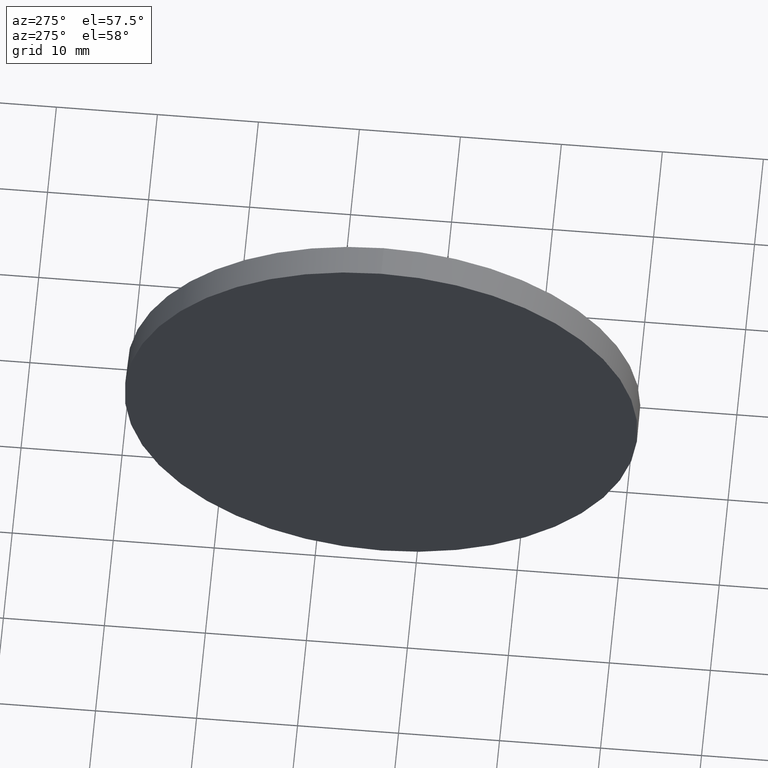
[diagram: clean part render]
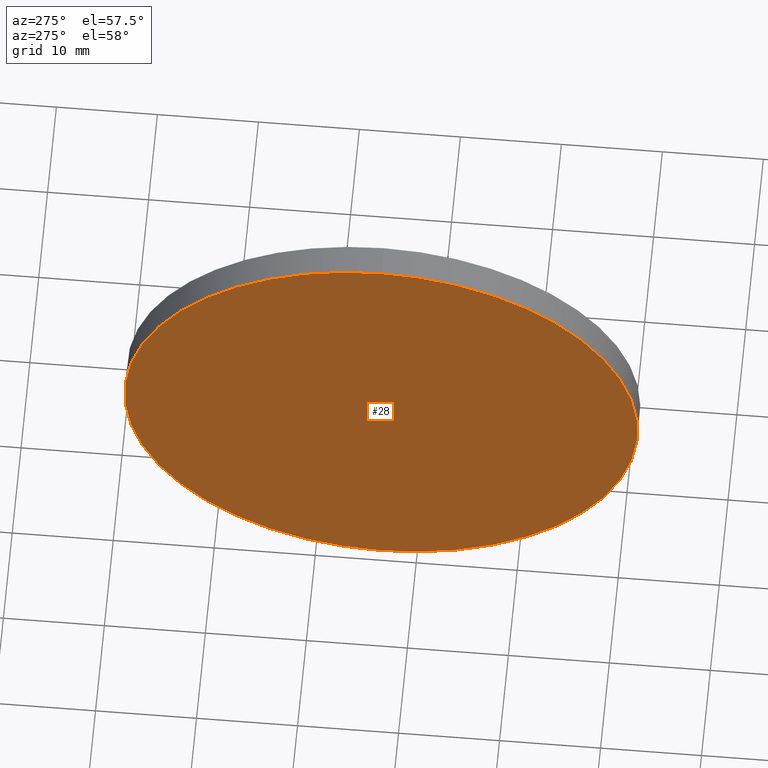
[diagram: same view with one face highlighted and labeled with its STEP entity id]
A machine part, auxiliary view. The second image highlights one B-rep face of the part: STEP entity #28.
In plain terms, the highlighted planar face has unit normal (1, 0, 0).
Its self-contained STEP definition (entity closure, byte-faithful):
#4 = CARTESIAN_POINT ( 'NONE',  ( 540.4485991064416300, 103.5177711168334200, 25.40000000000000600 ) ) ;
#11 = DIRECTION ( 'NONE',  ( 1.000000000000000000, 0.0000000000000000000, 0.0000000000000000000 ) ) ;
#13 = CARTESIAN_POINT ( 'NONE',  ( 540.4485991064416300, 103.5177711168334200, 0.0000000000000000000 ) ) ;
#28 = ADVANCED_FACE ( 'NONE', ( #100 ), #72, .F. ) ;
#31 = ORIENTED_EDGE ( 'NONE', *, *, #63, .T. ) ;
#34 = DIRECTION ( 'NONE',  ( 0.0000000000000000000, 0.0000000000000000000, 1.000000000000000000 ) ) ;
#46 = CARTESIAN_POINT ( 'NONE',  ( 540.4485991064416300, 103.5177711168334200, -25.40000000000000600 ) ) ;
#56 = AXIS2_PLACEMENT_3D ( 'NONE', #13, #119, #171 ) ;
#60 = VERTEX_POINT ( 'NONE', #4 ) ;
#63 = EDGE_CURVE ( 'NONE', #60, #167, #186, .T. ) ;
#67 = CIRCLE ( 'NONE', #56, 25.40000000000000600 ) ;
#72 = PLANE ( 'NONE',  #156 ) ;
#96 = EDGE_CURVE ( 'NONE', #167, #60, #67, .T. ) ;
#100 = FACE_OUTER_BOUND ( 'NONE', #144, .T. ) ;
#105 = DIRECTION ( 'NONE',  ( -1.000000000000000000, -0.0000000000000000000, -0.0000000000000000000 ) ) ;
#113 = AXIS2_PLACEMENT_3D ( 'NONE', #161, #105, #34 ) ;
#118 = DIRECTION ( 'NONE',  ( 0.0000000000000000000, 0.0000000000000000000, -1.000000000000000000 ) ) ;
#119 = DIRECTION ( 'NONE',  ( -1.000000000000000000, -0.0000000000000000000, -0.0000000000000000000 ) ) ;
#136 = ORIENTED_EDGE ( 'NONE', *, *, #96, .T. ) ;
#144 = EDGE_LOOP ( 'NONE', ( #31, #136 ) ) ;
#154 = CARTESIAN_POINT ( 'NONE',  ( 540.4485991064416300, 103.5177711168334200, 0.0000000000000000000 ) ) ;
#156 = AXIS2_PLACEMENT_3D ( 'NONE', #154, #11, #118 ) ;
#161 = CARTESIAN_POINT ( 'NONE',  ( 540.4485991064416300, 103.5177711168334200, 0.0000000000000000000 ) ) ;
#167 = VERTEX_POINT ( 'NONE', #46 ) ;
#171 = DIRECTION ( 'NONE',  ( 0.0000000000000000000, 0.0000000000000000000, 1.000000000000000000 ) ) ;
#186 = CIRCLE ( 'NONE', #113, 25.40000000000000600 ) ;